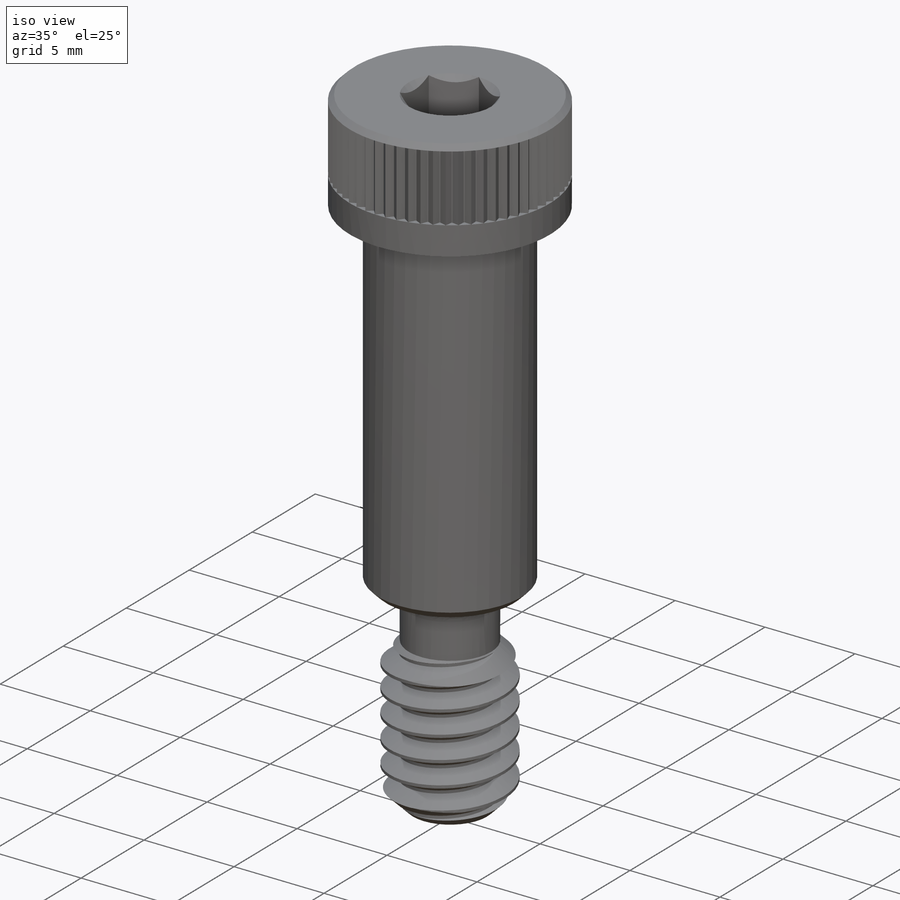
[diagram: iso view]
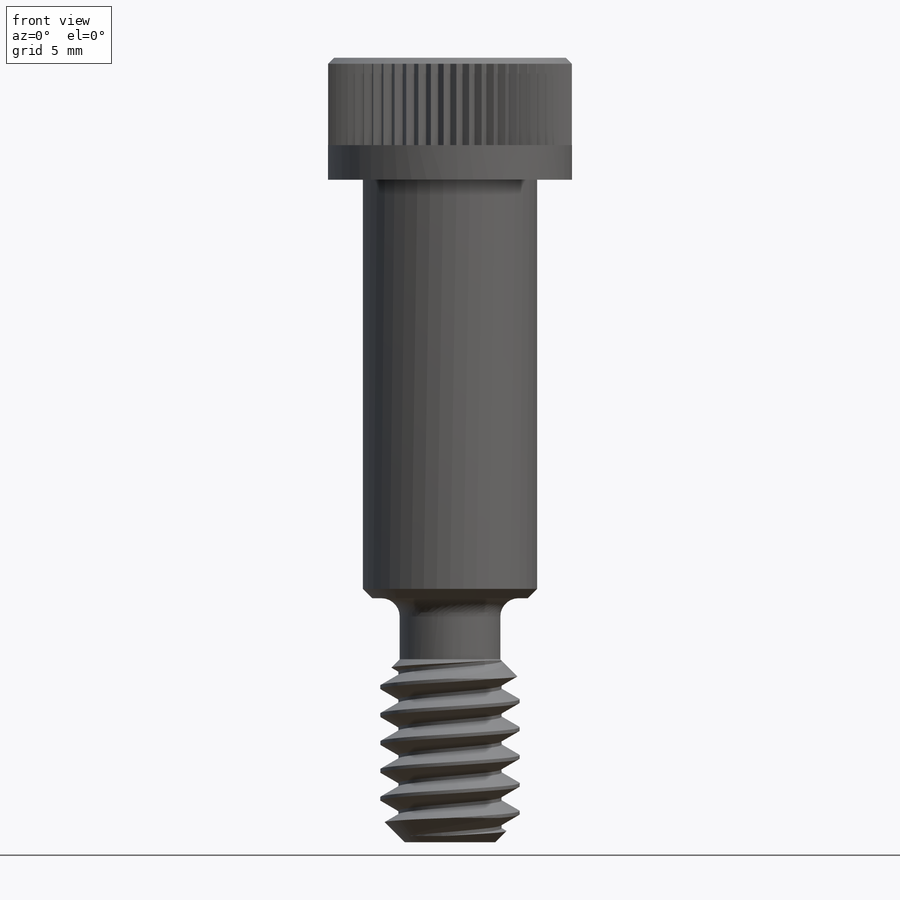
[diagram: front view]
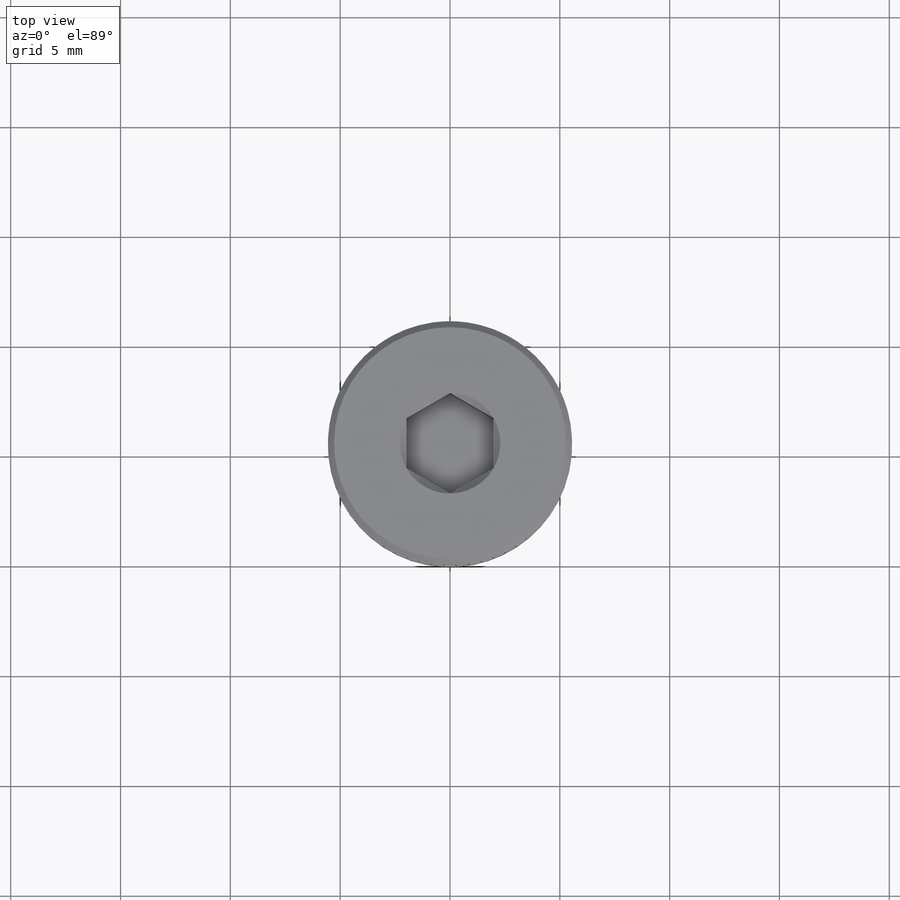
[diagram: top view]
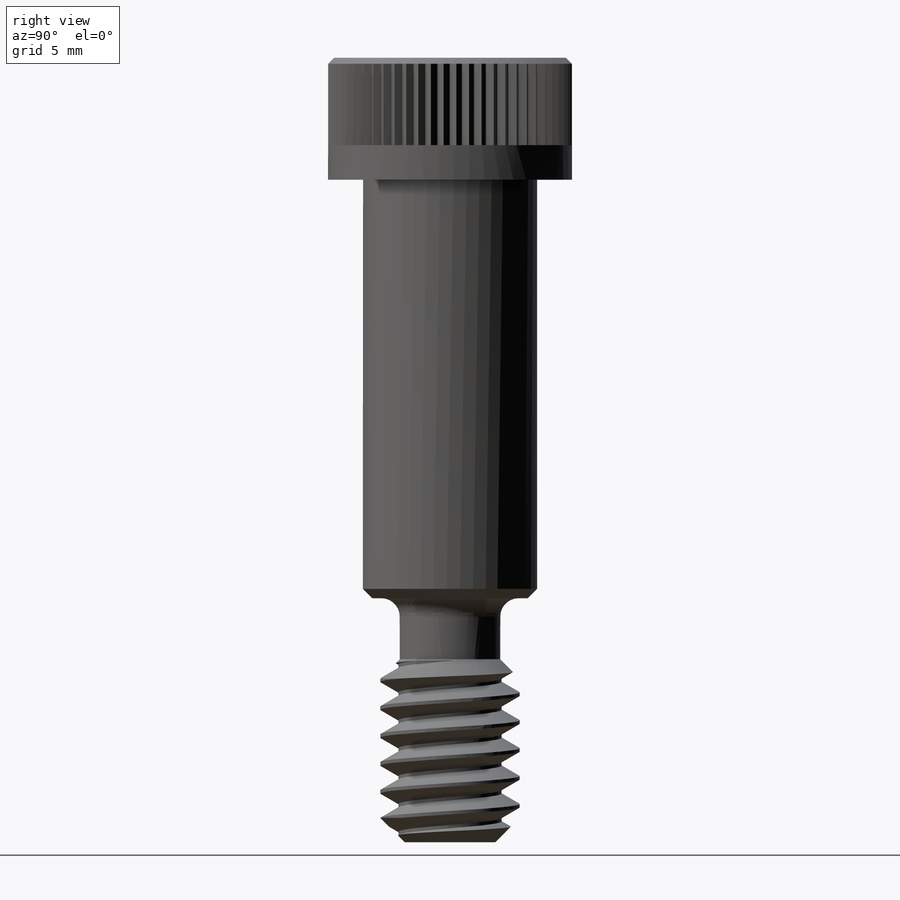
[diagram: right view]
SOLIDWORKS PART (.sldprt)
format: sldprt  version: not decoded by parser v0  size: 1,017,856 bytes
history: native  units: mm
features: sketch x12, extrude x3, cut_extrude x3, chamfer x3, plane x2, material x1, helix x1, sweep x1, cut_revolve x1, pattern_circular x1 (+15 scaffold rows collapsed)
feature tree (43):
  scaffold x15  (default folders/planes/origin — collapsed)
  material  "Material <not specified>"
  sketch  "Sketch1"  dims[Head Dia=11.1125mm]
  extrude  "Extrude1"  Depth=5.55625mm Head Ht=5.55625mm
  sketch  "Sketch2"  dims[Hex Key=~3.96875mm D1=~4.582718mm]
  cut_extrude  "Cut-Extrude1"  Depth=2.778125mm
  sketch  "Sketch18"
  cut_extrude  "Cut-Extrude4"  Depth=0.926042mm
  plane  "Plane2"  Offset=19.05mm sh length=19.05mm
  sketch  "Sketch4"  dims[Shoulder Dia=7.9375mm]
  extrude  "Extrude2"  Depth=19.05mm Shoulder Length=19.05mm
  sketch  "Sketch5"  dims[Thread Dia=6.35mm]
  extrude  "Extrude3"  Depth=11.1125mm Thread Length=11.1125mm
  sketch  "Sketch16"  dims[D1=4.7625mm]
  chamfer  "Chamfer1"  Distance=1.11125mm Angle=45deg
  sketch  "Sketch12"
  helix  "Helix/Spiral1"  Pitch=10.4775mm Thread Pitch =1.27mm
  sketch  "Sketch13"  dims[c1.D1=~1.910764mm c2.D1=60.0deg c2.D2=~0.15875mm c2.D3=0.635mm]
  sweep  "Cut-Sweep1"
  sketch  "Sketch17"  dims[c1.Thread Neck Fillet=~0.833437mm c1.D1=~2.822222mm c1.D2=11.1125mm c1.D3=~53.020485mm c2.D3=45.0deg c2.Thread Neck Width=~2.778125mm c2.Thread Neck Diameter=18.4404mm c2.D1=~0.059213mm]
  cut_revolve  "Cut-Revolve1"  Angle=360deg
  chamfer  "Chamfer2"  Distance=0.423333mm Angle=45deg
  plane  "Plane1"  Offset=0.277812mm
  sketch  "Sketch10"  dims[c1.D4=0.0508mm c1.D1=~11.293235mm c2.D1=20.0deg c3.D1=~0.981895mm c4.D1=90.0deg c4.D2=~11.925286mm c5.D2=6.0deg c5.D3=~0.081349mm]
  cut_extrude  "Cut-Extrude3"  Depth=3.704167mm
  pattern_circular  "CirPattern2"  Count=60 Angle=360deg
  chamfer  "Chamfer3"  Distance=0.277812mm Angle=45deg
  sketch  "Sketch14"
  sketch  "Sketch15"
decode coverage: 20 of 25 modeling features carry decoded parameters
note: ~ marks probable driven/reference dimensions
note: suppression state not decoded; provenance and decode notes live in map.json
